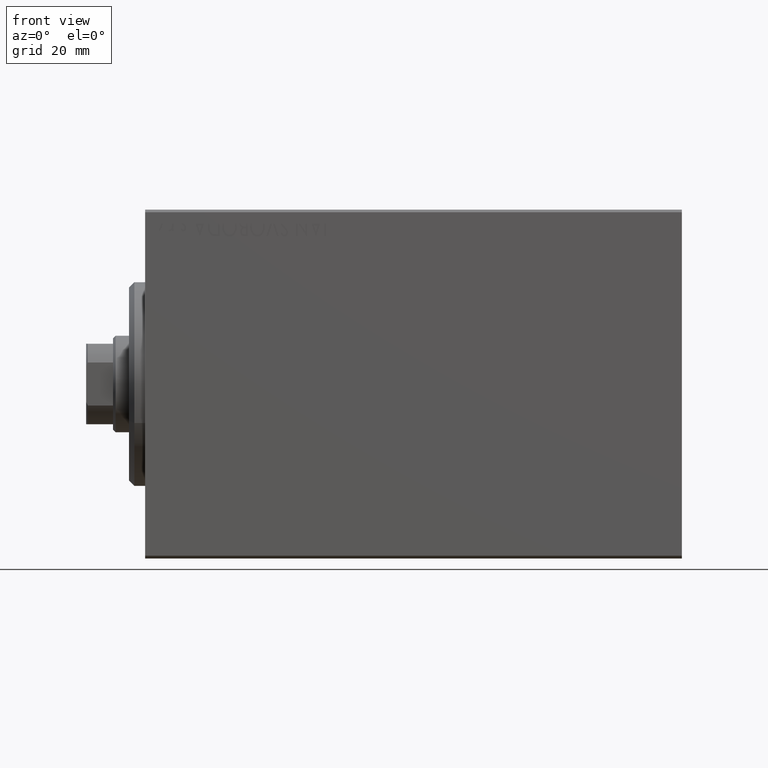
[diagram: clean part render]
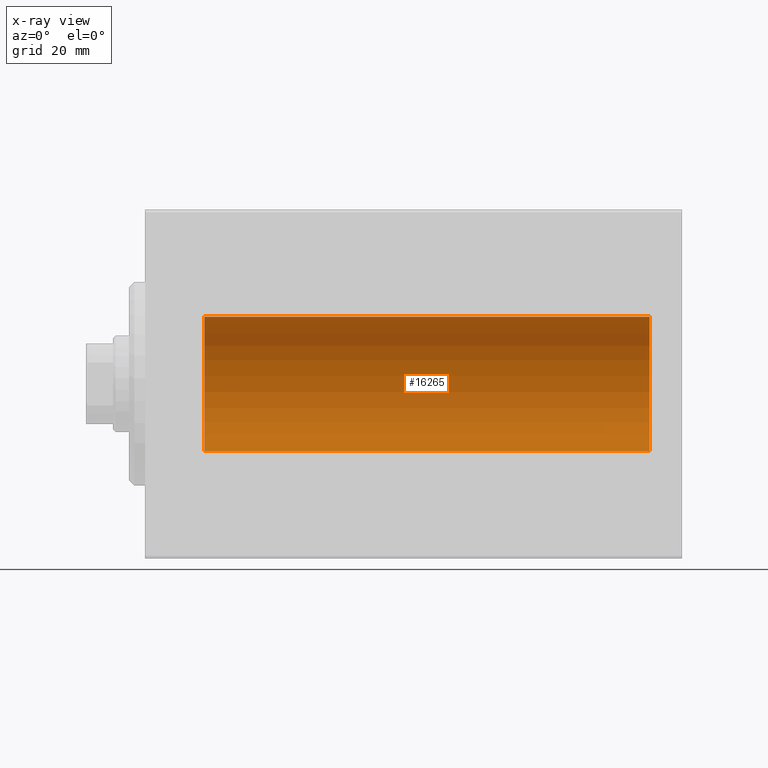
[diagram: x-ray — body ghosted, one internal face saturated and labeled with its STEP entity id]
A machine part, front view, then the same camera in x-ray: the body is ghosted and one INTERNAL B-rep face — a face not visible from any outside direction — is saturated and labeled: STEP entity #16265.
In plain terms, the highlighted cylindrical surface (partial cylindrical patch) has radius 12.5 mm, axis along (-1, -0, -0).
Its self-contained STEP definition (entity closure, byte-faithful):
#671 = DIRECTION ( 'NONE',  ( -1.000000000000000000, 0.000000000000000000, 0.000000000000000000 ) ) ;
#893 = CARTESIAN_POINT ( 'NONE',  ( 10.99999999999999645, 0.000000000000000000, 0.000000000000000000 ) ) ;
#2453 = VERTEX_POINT ( 'NONE', #18718 ) ;
#3052 = DIRECTION ( 'NONE',  ( -1.000000000000000000, -0.000000000000000000, -0.000000000000000000 ) ) ;
#4571 = VERTEX_POINT ( 'NONE', #24878 ) ;
#6612 = DIRECTION ( 'NONE',  ( 0.000000000000000000, 0.000000000000000000, 1.000000000000000000 ) ) ;
#7184 = CARTESIAN_POINT ( 'NONE',  ( 94.00000000000000000, 0.000000000000000000, 12.50000000000000000 ) ) ;
#7484 = DIRECTION ( 'NONE',  ( -1.000000000000000000, -0.000000000000000000, -0.000000000000000000 ) ) ;
#8250 = EDGE_LOOP ( 'NONE', ( #9223, #11485, #17318, #26069 ) ) ;
#9223 = ORIENTED_EDGE ( 'NONE', *, *, #11940, .F. ) ;
#9625 = VECTOR ( 'NONE', #33324, 1000.000000000000000 ) ;
#10341 = AXIS2_PLACEMENT_3D ( 'NONE', #13798, #26881, #10480 ) ;
#10480 = DIRECTION ( 'NONE',  ( 0.000000000000000000, 0.000000000000000000, 1.000000000000000000 ) ) ;
#11485 = ORIENTED_EDGE ( 'NONE', *, *, #42109, .F. ) ;
#11940 = EDGE_CURVE ( 'NONE', #4571, #27431, #30958, .T. ) ;
#13798 = CARTESIAN_POINT ( 'NONE',  ( 94.00000000000000000, 0.000000000000000000, 0.000000000000000000 ) ) ;
#14100 = CARTESIAN_POINT ( 'NONE',  ( 94.00000000000000000, 1.530808498934191521E-15, -12.50000000000000000 ) ) ;
#14164 = AXIS2_PLACEMENT_3D ( 'NONE', #40057, #3052, #6612 ) ;
#16265 = ADVANCED_FACE ( 'NONE', ( #26988 ), #36945, .F. ) ;
#17318 = ORIENTED_EDGE ( 'NONE', *, *, #41107, .T. ) ;
#18167 = CIRCLE ( 'NONE', #10341, 12.50000000000000000 ) ;
#18718 = CARTESIAN_POINT ( 'NONE',  ( 94.00000000000000000, 0.000000000000000000, 12.50000000000000000 ) ) ;
#19279 = AXIS2_PLACEMENT_3D ( 'NONE', #893, #671, #34998 ) ;
#19921 = CARTESIAN_POINT ( 'NONE',  ( 10.99999999999999645, 1.530808498934191521E-15, -12.50000000000000000 ) ) ;
#21464 = CARTESIAN_POINT ( 'NONE',  ( 10.99999999999999645, 0.000000000000000000, 12.50000000000000000 ) ) ;
#24684 = VECTOR ( 'NONE', #7484, 1000.000000000000000 ) ;
#24878 = CARTESIAN_POINT ( 'NONE',  ( 94.00000000000000000, 1.530808498934191521E-15, -12.50000000000000000 ) ) ;
#26069 = ORIENTED_EDGE ( 'NONE', *, *, #26202, .T. ) ;
#26202 = EDGE_CURVE ( 'NONE', #30881, #27431, #35562, .T. ) ;
#26881 = DIRECTION ( 'NONE',  ( -1.000000000000000000, 0.000000000000000000, 0.000000000000000000 ) ) ;
#26988 = FACE_OUTER_BOUND ( 'NONE', #8250, .T. ) ;
#27431 = VERTEX_POINT ( 'NONE', #19921 ) ;
#30232 = LINE ( 'NONE', #7184, #9625 ) ;
#30881 = VERTEX_POINT ( 'NONE', #21464 ) ;
#30958 = LINE ( 'NONE', #14100, #24684 ) ;
#33324 = DIRECTION ( 'NONE',  ( -1.000000000000000000, -0.000000000000000000, -0.000000000000000000 ) ) ;
#34998 = DIRECTION ( 'NONE',  ( 0.000000000000000000, 0.000000000000000000, 1.000000000000000000 ) ) ;
#35562 = CIRCLE ( 'NONE', #19279, 12.50000000000000000 ) ;
#36945 = CYLINDRICAL_SURFACE ( 'NONE', #14164, 12.50000000000000000 ) ;
#40057 = CARTESIAN_POINT ( 'NONE',  ( 94.00000000000000000, 0.000000000000000000, 0.000000000000000000 ) ) ;
#41107 = EDGE_CURVE ( 'NONE', #2453, #30881, #30232, .T. ) ;
#42109 = EDGE_CURVE ( 'NONE', #2453, #4571, #18167, .T. ) ;